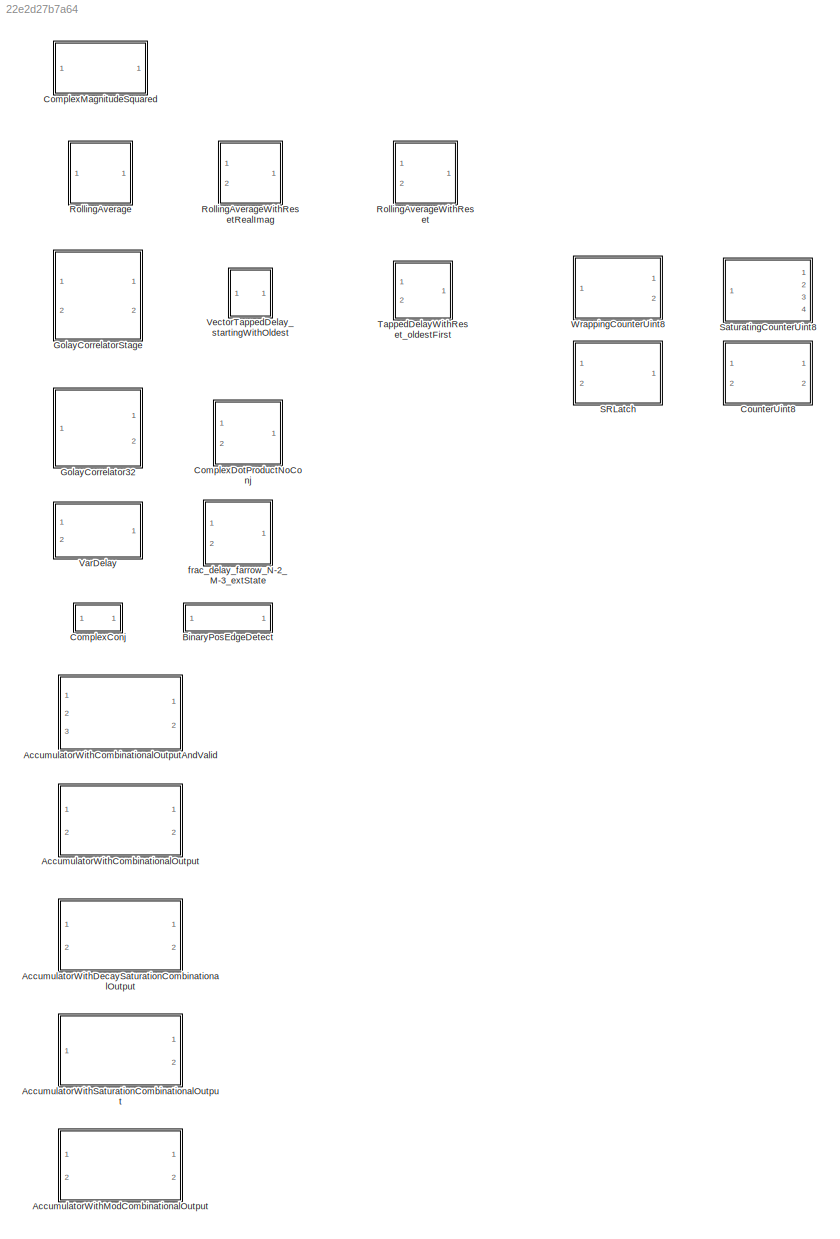
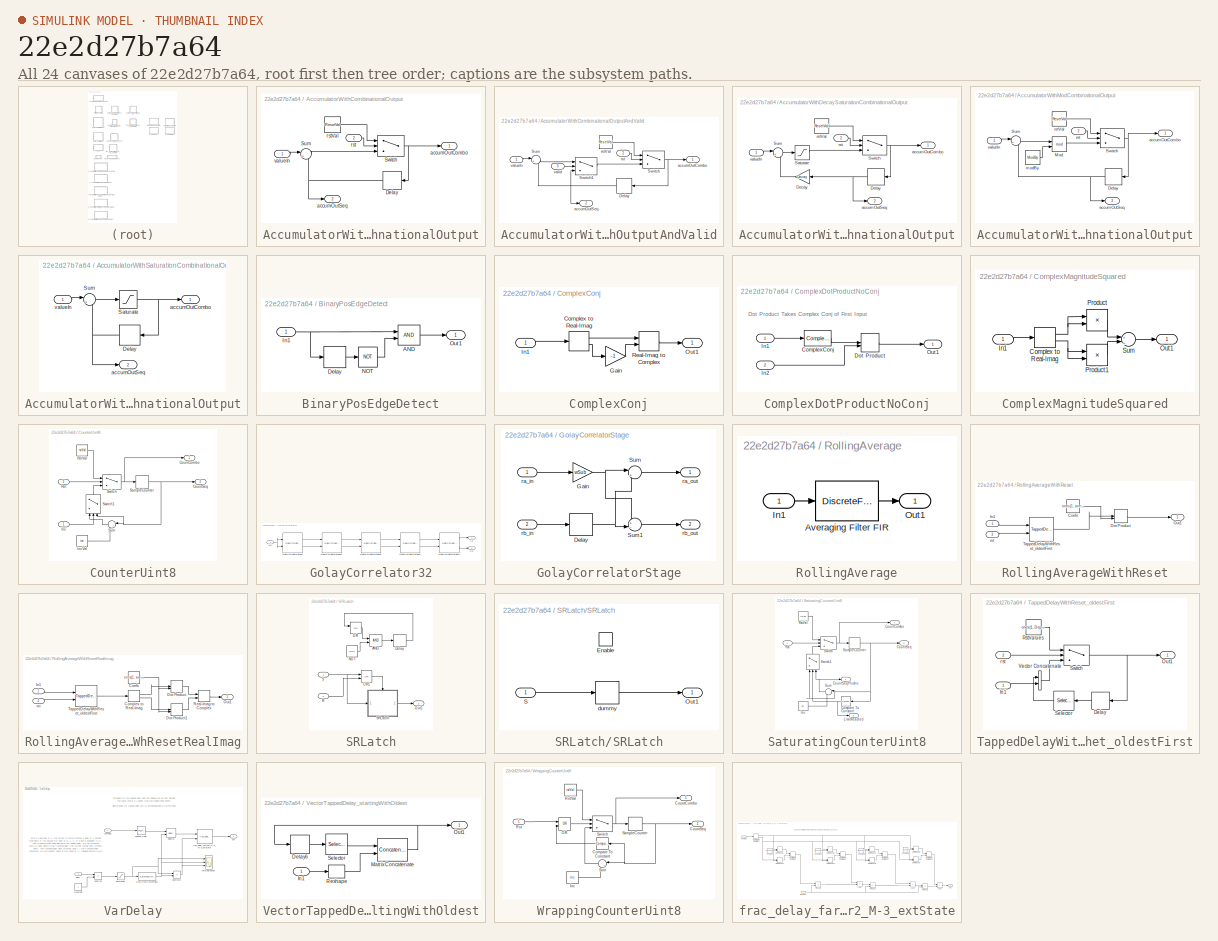
[diagram: thumbnail index - all 24 canvases of the model, root first then tree order]
MODEL slx_22e2d27b7a64
KIND library
CONFIG AbsTol = auto
CONFIG EnableMultiTasking = off
CONFIG FixedStep = auto
CONFIG MaxStep = auto
CONFIG MinStep = auto
CONFIG RelTol = 1e-3
CONFIG SampleTimeConstraint = Unconstrained
CONFIG SolverName = VariableStepAuto
CONFIG StartTime = 0.0
CONFIG StopTime = 10.0
BLOCK [SubSystem] AccumulatorWithCombinationalOutput
  Ports = [2, 2]
  RequestExecContextInheritance = off
BLOCK [Delay] AccumulatorWithCombinationalOutput/Delay
  DelayLength = 1
  InitialCondition = ResetVal
  InputPortMap = u0
  Ports = [1, 1]
BLOCK [Sum] AccumulatorWithCombinationalOutput/Sum
  Inputs = |++
  OutDataTypeStr = Inherit: Same as first input
  Ports = [2, 1]
BLOCK [Switch] AccumulatorWithCombinationalOutput/Switch
  Criteria = u2 ~= 0
  InputSameDT = off
  SaturateOnIntegerOverflow = off
BLOCK [Outport] AccumulatorWithCombinationalOutput/accumOutCombo
BLOCK [Outport] AccumulatorWithCombinationalOutput/accumOutSeq
  Port = 2
BLOCK [Inport] AccumulatorWithCombinationalOutput/rst
  Port = 2
BLOCK [Constant] AccumulatorWithCombinationalOutput/rstVal
  OutDataTypeStr = Inherit: Inherit via back propagation
  Value = ResetVal
BLOCK [Inport] AccumulatorWithCombinationalOutput/valueIn
BLOCK [SubSystem] AccumulatorWithCombinationalOutputAndValid
  Ports = [3, 2]
  RequestExecContextInheritance = off
BLOCK [Delay] AccumulatorWithCombinationalOutputAndValid/Delay
  DelayLength = 1
  InitialCondition = ResetVal
  InputPortMap = u0
  Ports = [1, 1]
BLOCK [Sum] AccumulatorWithCombinationalOutputAndValid/Sum
  Inputs = |++
  OutDataTypeStr = Inherit: Same as first input
  Ports = [2, 1]
BLOCK [Switch] AccumulatorWithCombinationalOutputAndValid/Switch
  Criteria = u2 ~= 0
  InputSameDT = off
  SaturateOnIntegerOverflow = off
BLOCK [Switch] AccumulatorWithCombinationalOutputAndValid/Switch1
  Criteria = u2 ~= 0
  InputSameDT = off
  SaturateOnIntegerOverflow = off
BLOCK [Outport] AccumulatorWithCombinationalOutputAndValid/accumOutCombo
BLOCK [Outport] AccumulatorWithCombinationalOutputAndValid/accumOutSeq
  Port = 2
BLOCK [Inport] AccumulatorWithCombinationalOutputAndValid/rst
  Port = 2
BLOCK [Constant] AccumulatorWithCombinationalOutputAndValid/rstVal
  OutDataTypeStr = Inherit: Inherit via back propagation
  Value = ResetVal
BLOCK [Inport] AccumulatorWithCombinationalOutputAndValid/valid
  OutDataTypeStr = boolean
  Port = 3
BLOCK [Inport] AccumulatorWithCombinationalOutputAndValid/valueIn
BLOCK [SubSystem] AccumulatorWithDecaySaturationCombinationalOutput
  Ports = [2, 2]
  RequestExecContextInheritance = off
BLOCK [Gain] AccumulatorWithDecaySaturationCombinationalOutput/Decay
  Gain = Decay
BLOCK [Delay] AccumulatorWithDecaySaturationCombinationalOutput/Delay
  DelayLength = 1
  InitialCondition = ResetVal
  InputPortMap = u0
  Ports = [1, 1]
BLOCK [Saturate] AccumulatorWithDecaySaturationCombinationalOutput/Saturate
  LowerLimit = SatDown
  UpperLimit = SatUp
BLOCK [Sum] AccumulatorWithDecaySaturationCombinationalOutput/Sum
  Inputs = |++
  OutDataTypeStr = Inherit: Same as first input
  Ports = [2, 1]
BLOCK [Switch] AccumulatorWithDecaySaturationCombinationalOutput/Switch
  Criteria = u2 ~= 0
  InputSameDT = off
  SaturateOnIntegerOverflow = off
BLOCK [Outport] AccumulatorWithDecaySaturationCombinationalOutput/accumOutCombo
BLOCK [Outport] AccumulatorWithDecaySaturationCombinationalOutput/accumOutSeq
  Port = 2
BLOCK [Inport] AccumulatorWithDecaySaturationCombinationalOutput/rst
  Port = 2
BLOCK [Constant] AccumulatorWithDecaySaturationCombinationalOutput/rstVal
  OutDataTypeStr = Inherit: Inherit via back propagation
  Value = ResetVal
BLOCK [Inport] AccumulatorWithDecaySaturationCombinationalOutput/valueIn
BLOCK [SubSystem] AccumulatorWithModCombinationalOutput
  Ports = [2, 2]
  RequestExecContextInheritance = off
BLOCK [Delay] AccumulatorWithModCombinationalOutput/Delay
  DelayLength = 1
  InitialCondition = ResetVal
  InputPortMap = u0
  Ports = [1, 1]
BLOCK [Math] AccumulatorWithModCombinationalOutput/Mod
  Operator = mod
  Ports = [2, 1]
BLOCK [Sum] AccumulatorWithModCombinationalOutput/Sum
  Inputs = |++
  OutDataTypeStr = Inherit: Same as first input
  Ports = [2, 1]
BLOCK [Switch] AccumulatorWithModCombinationalOutput/Switch
  Criteria = u2 ~= 0
  InputSameDT = off
  SaturateOnIntegerOverflow = off
BLOCK [Outport] AccumulatorWithModCombinationalOutput/accumOutCombo
BLOCK [Outport] AccumulatorWithModCombinationalOutput/accumOutSeq
  Port = 2
BLOCK [Constant] AccumulatorWithModCombinationalOutput/modBy
  OutDataTypeStr = Inherit: Inherit via back propagation
  Value = ModBy
BLOCK [Inport] AccumulatorWithModCombinationalOutput/rst
  Port = 2
BLOCK [Constant] AccumulatorWithModCombinationalOutput/rstVal
  OutDataTypeStr = Inherit: Inherit via back propagation
  Value = ResetVal
BLOCK [Inport] AccumulatorWithModCombinationalOutput/valueIn
BLOCK [SubSystem] AccumulatorWithSaturationCombinationalOutput
  Ports = [1, 2]
  RequestExecContextInheritance = off
BLOCK [Delay] AccumulatorWithSaturationCombinationalOutput/Delay
  DelayLength = 1
  InputPortMap = u0
  Ports = [1, 1]
BLOCK [Saturate] AccumulatorWithSaturationCombinationalOutput/Saturate
  LowerLimit = SatDown
  UpperLimit = SatUp
BLOCK [Sum] AccumulatorWithSaturationCombinationalOutput/Sum
  Inputs = |++
  OutDataTypeStr = Inherit: Same as first input
  Ports = [2, 1]
BLOCK [Outport] AccumulatorWithSaturationCombinationalOutput/accumOutCombo
BLOCK [Outport] AccumulatorWithSaturationCombinationalOutput/accumOutSeq
  Port = 2
BLOCK [Inport] AccumulatorWithSaturationCombinationalOutput/valueIn
BLOCK [SubSystem] BinaryPosEdgeDetect
  Ports = [1, 1]
  RequestExecContextInheritance = off
BLOCK [Logic] BinaryPosEdgeDetect/AND
  AllPortsSameDT = off
  IconShape = distinctive
  OutDataTypeStr = boolean
  Ports = [2, 1]
BLOCK [Delay] BinaryPosEdgeDetect/Delay
  DelayLength = 1
  InputPortMap = u0
  Ports = [1, 1]
BLOCK [Inport] BinaryPosEdgeDetect/In1
BLOCK [Logic] BinaryPosEdgeDetect/NOT
  AllPortsSameDT = off
  IconShape = distinctive
  Operator = NOT
  OutDataTypeStr = boolean
  Ports = [1, 1]
BLOCK [Outport] BinaryPosEdgeDetect/Out1
BLOCK [SubSystem] ComplexConj
  Ports = [1, 1]
  RequestExecContextInheritance = off
BLOCK [ComplexToRealImag] ComplexConj/Complex to Real-Imag
  Ports = [1, 2]
BLOCK [Gain] ComplexConj/Gain
  Gain = -1
BLOCK [Inport] ComplexConj/In1
BLOCK [Outport] ComplexConj/Out1
BLOCK [RealImagToComplex] ComplexConj/Real-Imag to Complex
  Ports = [2, 1]
BLOCK [SubSystem] ComplexDotProductNoConj
  Ports = [2, 1]
  RequestExecContextInheritance = off
BLOCK [Reference] ComplexDotProductNoConj/ComplexConj  REF=$bdroot/ComplexConj
  Ports = [1, 1]
  SourceBlock = $bdroot/ComplexConj
  SourceType = SubSystem
BLOCK [DotProduct] ComplexDotProductNoConj/Dot Product
  OutDataTypeStr = Inherit: Inherit via internal rule
BLOCK [Inport] ComplexDotProductNoConj/In1
BLOCK [Inport] ComplexDotProductNoConj/In2
  Port = 2
BLOCK [Outport] ComplexDotProductNoConj/Out1
BLOCK [SubSystem] ComplexMagnitudeSquared
  Ports = [1, 1]
  RequestExecContextInheritance = off
BLOCK [ComplexToRealImag] ComplexMagnitudeSquared/Complex to Real-Imag
  Ports = [1, 2]
BLOCK [Inport] ComplexMagnitudeSquared/In1
BLOCK [Outport] ComplexMagnitudeSquared/Out1
BLOCK [Product] ComplexMagnitudeSquared/Product
  OutDataTypeStr = Inherit: Same as first input
  Ports = [2, 1]
BLOCK [Product] ComplexMagnitudeSquared/Product1
  OutDataTypeStr = Inherit: Same as first input
  Ports = [2, 1]
BLOCK [Sum] ComplexMagnitudeSquared/Sum
  Inputs = +|+
  OutDataTypeStr = Inherit: Same as first input
  Ports = [2, 1]
BLOCK [SubSystem] CounterUint8
  Ports = [2, 2]
  RequestExecContextInheritance = off
BLOCK [Outport] CounterUint8/CountCombo
BLOCK [Outport] CounterUint8/CountSeq
  Port = 2
BLOCK [Inport] CounterUint8/Inc
  OutDataTypeStr = boolean
BLOCK [Constant] CounterUint8/IncVal
  OutDataTypeStr = uint8
  Value = inc
BLOCK [Inport] CounterUint8/Rst
  OutDataTypeStr = boolean
  Port = 2
BLOCK [Constant] CounterUint8/RstVal
  OutDataTypeStr = uint8
  Value = rstVal
BLOCK [Delay] CounterUint8/SampleCounter
  DelayLength = 1
  InputPortMap = u0
  Ports = [1, 1]
BLOCK [Sum] CounterUint8/Sum
  Inputs = |++
  Ports = [2, 1]
BLOCK [Switch] CounterUint8/Switch
  Criteria = u2 ~= 0
  InputSameDT = off
  SaturateOnIntegerOverflow = off
BLOCK [Switch] CounterUint8/Switch1
  Criteria = u2 ~= 0
  InputSameDT = off
  NameLocation = right
  SaturateOnIntegerOverflow = off
BLOCK [SubSystem] GolayCorrelator32
  Ports = [1, 2]
  RequestExecContextInheritance = off
BLOCK [Outport] GolayCorrelator32/Ca
BLOCK [Outport] GolayCorrelator32/Cb
  Port = 2
BLOCK [Reference] GolayCorrelator32/GolayCorrelatorStage  REF=$bdroot/GolayCorrelatorStage
  Ports = [2, 2]
  SourceBlock = $bdroot/GolayCorrelatorStage
BLOCK [Reference] GolayCorrelator32/GolayCorrelatorStage1  REF=$bdroot/GolayCorrelatorStage
  Ports = [2, 2]
  SourceBlock = $bdroot/GolayCorrelatorStage
BLOCK [Reference] GolayCorrelator32/GolayCorrelatorStage2  REF=$bdroot/GolayCorrelatorStage
  Ports = [2, 2]
  SourceBlock = $bdroot/GolayCorrelatorStage
BLOCK [Reference] GolayCorrelator32/GolayCorrelatorStage3  REF=$bdroot/GolayCorrelatorStage
  Ports = [2, 2]
  SourceBlock = $bdroot/GolayCorrelatorStage
BLOCK [Reference] GolayCorrelator32/GolayCorrelatorStage4  REF=$bdroot/GolayCorrelatorStage
  Ports = [2, 2]
  SourceBlock = $bdroot/GolayCorrelatorStage
BLOCK [Inport] GolayCorrelator32/In1
BLOCK [SubSystem] GolayCorrelatorStage
  Ports = [2, 2]
  RequestExecContextInheritance = off
BLOCK [Delay] GolayCorrelatorStage/Delay
  DelayLength = dSub
  InputPortMap = u0
  Ports = [1, 1]
BLOCK [Gain] GolayCorrelatorStage/Gain
  Gain = wSub
  OutDataTypeStr = Inherit: Same as input
BLOCK [Sum] GolayCorrelatorStage/Sum
  Inputs = |++
  NameLocation = top
  OutDataTypeStr = Inherit: Same as first input
  Ports = [2, 1]
BLOCK [Sum] GolayCorrelatorStage/Sum1
  Inputs = +-|
  OutDataTypeStr = Inherit: Same as first input
  Ports = [2, 1]
BLOCK [Inport] GolayCorrelatorStage/ra_in
BLOCK [Outport] GolayCorrelatorStage/ra_out
BLOCK [Inport] GolayCorrelatorStage/rb_in
  Port = 2
BLOCK [Outport] GolayCorrelatorStage/rb_out
  Port = 2
BLOCK [SubSystem] RollingAverage
  Ports = [1, 1]
  RequestExecContextInheritance = off
BLOCK [DiscreteFir] RollingAverage/Averaging Filter FIR
  Coefficients = ones(1, averagingSamples)./averagingSamples
  InputPortMap = u0
  OutputPortMap = o0
  Ports = [1, 1]
BLOCK [Inport] RollingAverage/In1
BLOCK [Outport] RollingAverage/Out1
BLOCK [SubSystem] RollingAverageWithReset
  Ports = [2, 1]
  RequestExecContextInheritance = off
BLOCK [Constant] RollingAverageWithReset/Coefs
  OutDataTypeStr = Inherit: Inherit via back propagation
  Value = ones(1, averagingSamples)./averagingSamples
BLOCK [DotProduct] RollingAverageWithReset/Dot Product
  OutDataTypeStr = Inherit: Inherit via internal rule
BLOCK [Inport] RollingAverageWithReset/In1
BLOCK [Outport] RollingAverageWithReset/Out1
BLOCK [Reference] RollingAverageWithReset/TappedDelayWithReset_oldestFirst  REF=$bdroot/TappedDelayWithReset_oldestFirst
  Ports = [2, 1]
  SourceBlock = $bdroot/TappedDelayWithReset_oldestFirst
BLOCK [Inport] RollingAverageWithReset/rst
  Port = 2
BLOCK [SubSystem] RollingAverageWithResetRealImag
  Ports = [2, 1]
  RequestExecContextInheritance = off
BLOCK [Constant] RollingAverageWithResetRealImag/Coefs
  OutDataTypeStr = Inherit: Inherit via back propagation
  Value = ones(1, averagingSamples)./averagingSamples
BLOCK [ComplexToRealImag] RollingAverageWithResetRealImag/Complex to Real-Imag
  Ports = [1, 2]
BLOCK [DotProduct] RollingAverageWithResetRealImag/Dot Product
  OutDataTypeStr = Inherit: Inherit via internal rule
BLOCK [DotProduct] RollingAverageWithResetRealImag/Dot Product1
  OutDataTypeStr = Inherit: Inherit via internal rule
BLOCK [Inport] RollingAverageWithResetRealImag/In1
BLOCK [Outport] RollingAverageWithResetRealImag/Out1
BLOCK [RealImagToComplex] RollingAverageWithResetRealImag/Real-Imag to Complex
  Ports = [2, 1]
BLOCK [Reference] RollingAverageWithResetRealImag/TappedDelayWithReset_oldestFirst  REF=$bdroot/TappedDelayWithReset_oldestFirst
  Ports = [2, 1]
  SourceBlock = $bdroot/TappedDelayWithReset_oldestFirst
BLOCK [Inport] RollingAverageWithResetRealImag/rst
  Port = 2
BLOCK [SubSystem] SRLatch
  Ports = [2, 1]
  RequestExecContextInheritance = off
BLOCK [Logic] SRLatch/AND
  AllPortsSameDT = off
  Commented = on
  IconShape = distinctive
  OutDataTypeStr = boolean
  Ports = [2, 1]
BLOCK [Delay] SRLatch/Delay
  Commented = on
  DelayLength = 1
  InitialCondition = init
  InputPortMap = u0
  Ports = [1, 1]
BLOCK [Logic] SRLatch/NOT
  AllPortsSameDT = off
  Commented = on
  IconShape = distinctive
  Operator = NOT
  OutDataTypeStr = boolean
  Ports = [1, 1]
BLOCK [Logic] SRLatch/OR
  AllPortsSameDT = off
  Commented = on
  IconShape = distinctive
  Operator = OR
  OutDataTypeStr = boolean
  Ports = [2, 1]
BLOCK [Logic] SRLatch/OR1
  AllPortsSameDT = off
  IconShape = distinctive
  Operator = OR
  OutDataTypeStr = boolean
  Ports = [2, 1]
BLOCK [Outport] SRLatch/Out1
BLOCK [Inport] SRLatch/R
  OutDataTypeStr = boolean
  Port = 2
BLOCK [Inport] SRLatch/S
  OutDataTypeStr = boolean
BLOCK [SubSystem] SRLatch/SRLatch
  Ports = [1, 1, 1]
  RequestExecContextInheritance = off
  TreatAsAtomicUnit = on
BLOCK [EnablePort] SRLatch/SRLatch/Enable
  Ports = []
BLOCK [Outport] SRLatch/SRLatch/Out1
  InitialOutput = init
  OutDataTypeStr = boolean
BLOCK [Inport] SRLatch/SRLatch/S
BLOCK [Delay] SRLatch/SRLatch/dummy
  DelayLength = 0
  InputPortMap = u0
  Ports = [1, 1]
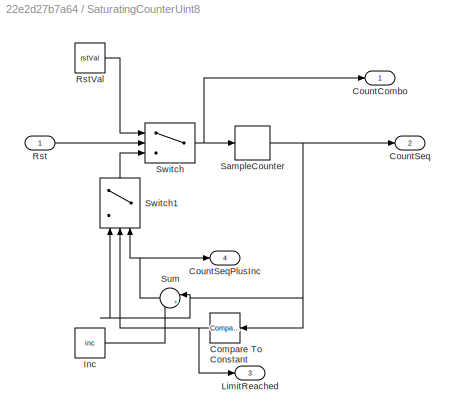
BLOCK [SubSystem] SaturatingCounterUint8
  Ports = [1, 4]
  RequestExecContextInheritance = off
BLOCK [Reference] SaturatingCounterUint8/Compare To Constant  REF=simulink/Logic and Bit
Operations/Compare
To Constant
  Ports = [1, 1]
  SourceBlock = simulink/Logic and Bit\nOperations/Compare\nTo Constant
  SourceProductBaseCode = SL
  SourceType = Compare To Constant
BLOCK [Outport] SaturatingCounterUint8/CountCombo
BLOCK [Outport] SaturatingCounterUint8/CountSeq
  Port = 2
BLOCK [Outport] SaturatingCounterUint8/CountSeqPlusInc
  Port = 4
BLOCK [Constant] SaturatingCounterUint8/Inc
  OutDataTypeStr = uint8
  Value = inc
BLOCK [Outport] SaturatingCounterUint8/LimitReached
  Port = 3
BLOCK [Inport] SaturatingCounterUint8/Rst
  OutDataTypeStr = boolean
BLOCK [Constant] SaturatingCounterUint8/RstVal
  OutDataTypeStr = uint8
  Value = rstVal
BLOCK [Delay] SaturatingCounterUint8/SampleCounter
  DelayLength = 1
  InputPortMap = u0
  Ports = [1, 1]
BLOCK [Sum] SaturatingCounterUint8/Sum
  Inputs = |++
  Ports = [2, 1]
BLOCK [Switch] SaturatingCounterUint8/Switch
  Criteria = u2 ~= 0
  InputSameDT = off
  SaturateOnIntegerOverflow = off
BLOCK [Switch] SaturatingCounterUint8/Switch1
  Criteria = u2 > Threshold
  InputSameDT = off
  NameLocation = right
  SaturateOnIntegerOverflow = off
BLOCK [SubSystem] TappedDelayWithReset_oldestFirst
  Ports = [2, 1]
  RequestExecContextInheritance = off
BLOCK [Delay] TappedDelayWithReset_oldestFirst/Delay
  DelayLength = 1
  InputPortMap = u0
  Ports = [1, 1]
BLOCK [Inport] TappedDelayWithReset_oldestFirst/In1
  PortDimensions = 1
BLOCK [Outport] TappedDelayWithReset_oldestFirst/Out1
  PortDimensions = [Depth]
BLOCK [Constant] TappedDelayWithReset_oldestFirst/RstValues
  OutDataTypeStr = Inherit: Inherit via back propagation
  Value = ones(1, Depth).*RstVal
BLOCK [Selector] TappedDelayWithReset_oldestFirst/Selector
  IndexMode = Zero-based
  IndexOptions = Starting index (dialog)
  Indices = 1
  InputPortWidth = Depth
  OutputSizes = Depth-1
  Ports = [1, 1]
BLOCK [Switch] TappedDelayWithReset_oldestFirst/Switch
  Criteria = u2 ~= 0
  InputSameDT = off
  SaturateOnIntegerOverflow = off
BLOCK [Concatenate] TappedDelayWithReset_oldestFirst/Vector Concatenate
  Ports = [2, 1]
BLOCK [Inport] TappedDelayWithReset_oldestFirst/rst
  Port = 2
BLOCK [SubSystem] VarDelay
  Ports = [2, 1]
  RequestExecContextInheritance = off
BLOCK [Constant] VarDelay/Constant
  OutDataTypeStr = Inherit: Inherit via back propagation
BLOCK [DataTypeConversion] VarDelay/Data Type Conversion
  OutDataTypeStr = int32
  RndMeth = Floor
  SaturateOnIntegerOverflow = off
BLOCK [Saturate] VarDelay/Saturation
  LinearizeAsGain = off
  LowerLimit = 0
  UpperLimit = trTappedDelayLen+1-trFarrowTaps
BLOCK [Selector] VarDelay/Selector
  IndexMode = Zero-based
  IndexOptions = Starting index (port)
  Indices = [1 3]
  InputPortWidth = trTappedDelayLen+1
  OutputSizes = trFarrowTaps
  Ports = [2, 1]
BLOCK [Sum] VarDelay/Subtract
  IconShape = rectangular
  Inputs = +-
  OutDataTypeStr = Inherit: Same as first input
  Ports = [2, 1]
BLOCK [Sum] VarDelay/Subtract1
  IconShape = rectangular
  Inputs = +-
  OutDataTypeStr = Inherit: Same as first input
  Ports = [2, 1]
BLOCK [Reference] VarDelay/Tapped Delay  REF=simulink/Discrete/Tapped Delay
  Ports = [1, 1]
  SourceBlock = simulink/Discrete/Tapped Delay
  SourceProductBaseCode = SL
  SourceType = Tapped Delay Line
BLOCK [Scope] VarDelay/VarDelayScope
  Floating = off
  NumInputPorts = 3
  Ports = [3]
  ScopeSpecificationString = Simulink.scopes.TimeScopeBlockCfg('CurrentConfiguration', extmgr.ConfigurationSet(extmgr.Configuration('Core','General UI',true),extmgr.Configuration('Core','Source UI',true),extmgr.Configuration('Sources','WiredSimulink',true,'DataLoggingVariableName','ScopeData1'),extmgr.Configuration('Visuals','Time Domain',true,'SerializedDisplays',{struct('MinYLimReal','-2.625','MaxYLimReal','23.625','YLabelR...<+1450ch>
BLOCK [Inport] VarDelay/delay
  OutDataTypeStr = single
  Port = 2
BLOCK [Reference] VarDelay/frac_delay_farrow_N-2_M-3_extState  REF=$bdroot/frac_delay_farrow_N-2_M-3_extState
  Ports = [2, 1]
  SourceBlock = $bdroot/frac_delay_farrow_N-2_M-3_extState
  SourceType = SubSystem
BLOCK [Outport] VarDelay/out
  VectorParamsAs1DForOutWhenUnconnected = off
BLOCK [Inport] VarDelay/samples
BLOCK [SubSystem] VectorTappedDelay_startingWithOldest
  Ports = [1, 1]
  RequestExecContextInheritance = off
BLOCK [Delay] VectorTappedDelay_startingWithOldest/Delay6
  DelayLength = 1
  InitialCondition = InitCond
  InputPortMap = u0
  Ports = [1, 1]
BLOCK [Inport] VectorTappedDelay_startingWithOldest/In1
  PortDimensions = [VecLen]
BLOCK [Concatenate] VectorTappedDelay_startingWithOldest/Matrix Concatenate
  Mode = Multidimensional array
  Ports = [2, 1]
BLOCK [Outport] VectorTappedDelay_startingWithOldest/Out1
  PortDimensions = [Depth, VecLen]
BLOCK [Reshape] VectorTappedDelay_startingWithOldest/Reshape
  OutputDimensionality = Row vector (2-D)
  Ports = [1, 1]
BLOCK [Selector] VectorTappedDelay_startingWithOldest/Selector
  IndexOptions = Starting index (dialog),Starting index (dialog)
  Indices = 2,1
  InputPortWidth = 3
  NumberOfDimensions = 2
  OutputSizes = Depth-1,VecLen
  Ports = [1, 1]
BLOCK [SubSystem] WrappingCounterUint8
  Ports = [1, 2]
  RequestExecContextInheritance = off
BLOCK [Reference] WrappingCounterUint8/Compare To Constant  REF=simulink/Logic and Bit
Operations/Compare
To Constant
  Ports = [1, 1]
  SourceBlock = simulink/Logic and Bit\nOperations/Compare\nTo Constant
  SourceProductBaseCode = SL
  SourceType = Compare To Constant
BLOCK [Outport] WrappingCounterUint8/CountCombo
BLOCK [Outport] WrappingCounterUint8/CountSeq
  Port = 2
BLOCK [Constant] WrappingCounterUint8/Inc
  OutDataTypeStr = uint8
  Value = inc
BLOCK [Logic] WrappingCounterUint8/OR
  AllPortsSameDT = off
  IconShape = distinctive
  Operator = OR
  OutDataTypeStr = boolean
  Ports = [2, 1]
BLOCK [Inport] WrappingCounterUint8/Rst
  OutDataTypeStr = boolean
BLOCK [Constant] WrappingCounterUint8/RstVal
  OutDataTypeStr = uint8
  Value = rstVal
BLOCK [Delay] WrappingCounterUint8/SampleCounter
  DelayLength = 1
  InputPortMap = u0
  Ports = [1, 1]
BLOCK [Sum] WrappingCounterUint8/Sum
  Inputs = |++
  Ports = [2, 1]
BLOCK [Switch] WrappingCounterUint8/Switch
  Criteria = u2 ~= 0
  InputSameDT = off
  SaturateOnIntegerOverflow = off
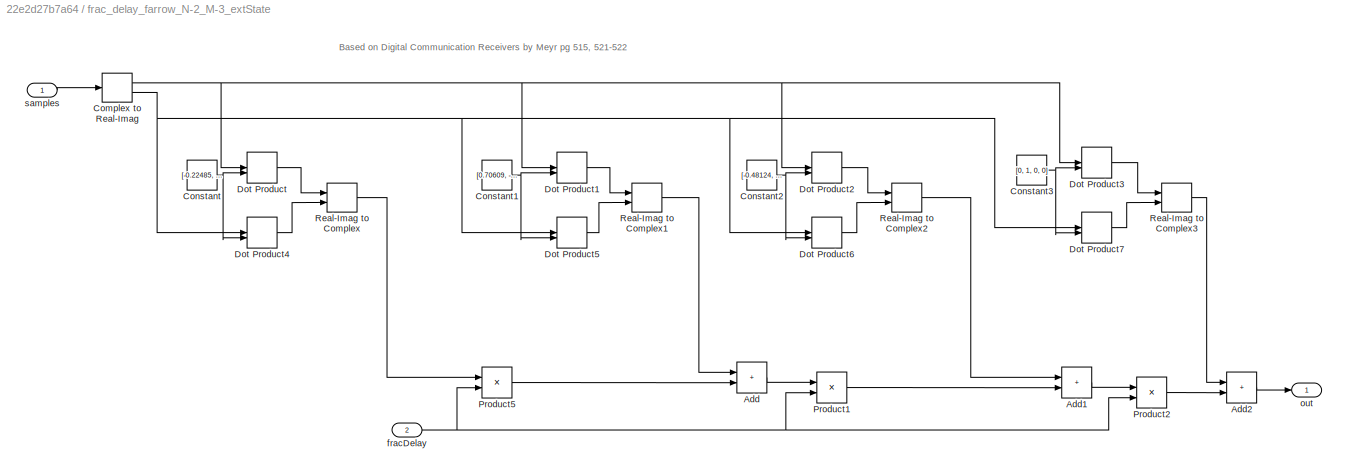
BLOCK [SubSystem] frac_delay_farrow_N-2_M-3_extState
  Ports = [2, 1]
  RequestExecContextInheritance = off
BLOCK [Sum] frac_delay_farrow_N-2_M-3_extState/Add
  AccumDataTypeStr = Inherit: Same as first input
  IconShape = rectangular
  Ports = [2, 1]
BLOCK [Sum] frac_delay_farrow_N-2_M-3_extState/Add1
  AccumDataTypeStr = Inherit: Same as first input
  IconShape = rectangular
  Ports = [2, 1]
BLOCK [Sum] frac_delay_farrow_N-2_M-3_extState/Add2
  AccumDataTypeStr = Inherit: Same as first input
  IconShape = rectangular
  Ports = [2, 1]
BLOCK [ComplexToRealImag] frac_delay_farrow_N-2_M-3_extState/Complex to Real-Imag
  Ports = [1, 2]
BLOCK [Constant] frac_delay_farrow_N-2_M-3_extState/Constant
  OutDataTypeStr = Inherit: Inherit via back propagation
  Value = [-0.22485, 0.64567, -0.64567, 0.22485]
BLOCK [Constant] frac_delay_farrow_N-2_M-3_extState/Constant1
  OutDataTypeStr = Inherit: Inherit via back propagation
  Value = [0.70609, -1.31155, 0.62547, 0.03154]
BLOCK [Constant] frac_delay_farrow_N-2_M-3_extState/Constant2
  OutDataTypeStr = Inherit: Inherit via back propagation
  Value = [-0.48124, -0.33413, 1.02020, -0.25639]
BLOCK [Constant] frac_delay_farrow_N-2_M-3_extState/Constant3
  OutDataTypeStr = Inherit: Inherit via back propagation
  Value = [0, 1, 0, 0]
BLOCK [DotProduct] frac_delay_farrow_N-2_M-3_extState/Dot Product
  OutDataTypeStr = Inherit: Inherit via internal rule
BLOCK [DotProduct] frac_delay_farrow_N-2_M-3_extState/Dot Product1
  OutDataTypeStr = Inherit: Inherit via internal rule
BLOCK [DotProduct] frac_delay_farrow_N-2_M-3_extState/Dot Product2
  OutDataTypeStr = Inherit: Inherit via internal rule
BLOCK [DotProduct] frac_delay_farrow_N-2_M-3_extState/Dot Product3
  OutDataTypeStr = Inherit: Inherit via internal rule
BLOCK [DotProduct] frac_delay_farrow_N-2_M-3_extState/Dot Product4
  OutDataTypeStr = Inherit: Inherit via internal rule
BLOCK [DotProduct] frac_delay_farrow_N-2_M-3_extState/Dot Product5
  OutDataTypeStr = Inherit: Inherit via internal rule
BLOCK [DotProduct] frac_delay_farrow_N-2_M-3_extState/Dot Product6
  OutDataTypeStr = Inherit: Inherit via internal rule
BLOCK [DotProduct] frac_delay_farrow_N-2_M-3_extState/Dot Product7
  OutDataTypeStr = Inherit: Inherit via internal rule
BLOCK [Product] frac_delay_farrow_N-2_M-3_extState/Product1
  OutDataTypeStr = Inherit: Same as first input
  Ports = [2, 1]
BLOCK [Product] frac_delay_farrow_N-2_M-3_extState/Product2
  OutDataTypeStr = Inherit: Same as first input
  Ports = [2, 1]
BLOCK [Product] frac_delay_farrow_N-2_M-3_extState/Product5
  OutDataTypeStr = Inherit: Same as first input
  Ports = [2, 1]
BLOCK [RealImagToComplex] frac_delay_farrow_N-2_M-3_extState/Real-Imag to Complex
  Ports = [2, 1]
BLOCK [RealImagToComplex] frac_delay_farrow_N-2_M-3_extState/Real-Imag to Complex1
  Ports = [2, 1]
BLOCK [RealImagToComplex] frac_delay_farrow_N-2_M-3_extState/Real-Imag to Complex2
  Ports = [2, 1]
BLOCK [RealImagToComplex] frac_delay_farrow_N-2_M-3_extState/Real-Imag to Complex3
  Ports = [2, 1]
BLOCK [Inport] frac_delay_farrow_N-2_M-3_extState/fracDelay
  Port = 2
BLOCK [Outport] frac_delay_farrow_N-2_M-3_extState/out
  VectorParamsAs1DForOutWhenUnconnected = off
BLOCK [Inport] frac_delay_farrow_N-2_M-3_extState/samples
  PortDimensions = 4
ANNOTATION ComplexDotProductNoConj: Dot Product Takes Complex Conj of First Input
ANNOTATION VarDelay: The length of the tapped delay does not include the current sample, the ouput vector is 1 longer than the tapped delay length. Allowed index for tapped delay are (0, lenTappedDelay+1-farrowTaps)
ANNOTATION VarDelay: with a fracDelay of 0, the farrow structure still has a delay of 1 sample (coeffients of the passed FIR filter is [0, 1, 0, 0] which is equivalent to z^-1) With a passthrough value allowed in the tapped delay, we can effectivly pass a 0 delay signal to the fractional delay (the current sample and 4 previous ones). The fractional delay filter effectivly adds 1 + the fractional delay. Therefore, we ...<+111ch>
ANNOTATION frac_delay_farrow_N-2_M-3_extState: Based on Digital Communication Receivers by Meyr pg 515, 521-522
NET AccumulatorWithCombinationalOutput/Delay:1 -> AccumulatorWithCombinationalOutput/Sum:2, AccumulatorWithCombinationalOutput/accumOutSeq:1
LINE AccumulatorWithCombinationalOutput/Sum:1 -> AccumulatorWithCombinationalOutput/Switch:3
NET AccumulatorWithCombinationalOutput/Switch:1 -> AccumulatorWithCombinationalOutput/Delay:1, AccumulatorWithCombinationalOutput/accumOutCombo:1
LINE AccumulatorWithCombinationalOutput/rst:1 -> AccumulatorWithCombinationalOutput/Switch:2
LINE AccumulatorWithCombinationalOutput/rstVal:1 -> AccumulatorWithCombinationalOutput/Switch:1
LINE AccumulatorWithCombinationalOutput/valueIn:1 -> AccumulatorWithCombinationalOutput/Sum:1
NET AccumulatorWithCombinationalOutputAndValid/Delay:1 -> AccumulatorWithCombinationalOutputAndValid/Sum:2, AccumulatorWithCombinationalOutputAndValid/Switch1:3, AccumulatorWithCombinationalOutputAndValid/accumOutSeq:1
LINE AccumulatorWithCombinationalOutputAndValid/Sum:1 -> AccumulatorWithCombinationalOutputAndValid/Switch1:1
LINE AccumulatorWithCombinationalOutputAndValid/Switch1:1 -> AccumulatorWithCombinationalOutputAndValid/Switch:3
NET AccumulatorWithCombinationalOutputAndValid/Switch:1 -> AccumulatorWithCombinationalOutputAndValid/Delay:1, AccumulatorWithCombinationalOutputAndValid/accumOutCombo:1
LINE AccumulatorWithCombinationalOutputAndValid/rst:1 -> AccumulatorWithCombinationalOutputAndValid/Switch:2
LINE AccumulatorWithCombinationalOutputAndValid/rstVal:1 -> AccumulatorWithCombinationalOutputAndValid/Switch:1
LINE AccumulatorWithCombinationalOutputAndValid/valid:1 -> AccumulatorWithCombinationalOutputAndValid/Switch1:2
LINE AccumulatorWithCombinationalOutputAndValid/valueIn:1 -> AccumulatorWithCombinationalOutputAndValid/Sum:1
LINE AccumulatorWithDecaySaturationCombinationalOutput/Decay:1 -> AccumulatorWithDecaySaturationCombinationalOutput/Sum:2
NET AccumulatorWithDecaySaturationCombinationalOutput/Delay:1 -> AccumulatorWithDecaySaturationCombinationalOutput/Decay:1, AccumulatorWithDecaySaturationCombinationalOutput/accumOutSeq:1
LINE AccumulatorWithDecaySaturationCombinationalOutput/Saturate:1 -> AccumulatorWithDecaySaturationCombinationalOutput/Switch:3
LINE AccumulatorWithDecaySaturationCombinationalOutput/Sum:1 -> AccumulatorWithDecaySaturationCombinationalOutput/Saturate:1
NET AccumulatorWithDecaySaturationCombinationalOutput/Switch:1 -> AccumulatorWithDecaySaturationCombinationalOutput/Delay:1, AccumulatorWithDecaySaturationCombinationalOutput/accumOutCombo:1
LINE AccumulatorWithDecaySaturationCombinationalOutput/rst:1 -> AccumulatorWithDecaySaturationCombinationalOutput/Switch:2
LINE AccumulatorWithDecaySaturationCombinationalOutput/rstVal:1 -> AccumulatorWithDecaySaturationCombinationalOutput/Switch:1
LINE AccumulatorWithDecaySaturationCombinationalOutput/valueIn:1 -> AccumulatorWithDecaySaturationCombinationalOutput/Sum:1
NET AccumulatorWithModCombinationalOutput/Delay:1 -> AccumulatorWithModCombinationalOutput/Sum:2, AccumulatorWithModCombinationalOutput/accumOutSeq:1
LINE AccumulatorWithModCombinationalOutput/Mod:1 -> AccumulatorWithModCombinationalOutput/Switch:3
LINE AccumulatorWithModCombinationalOutput/Sum:1 -> AccumulatorWithModCombinationalOutput/Mod:1
NET AccumulatorWithModCombinationalOutput/Switch:1 -> AccumulatorWithModCombinationalOutput/Delay:1, AccumulatorWithModCombinationalOutput/accumOutCombo:1
LINE AccumulatorWithModCombinationalOutput/modBy:1 -> AccumulatorWithModCombinationalOutput/Mod:2
LINE AccumulatorWithModCombinationalOutput/rst:1 -> AccumulatorWithModCombinationalOutput/Switch:2
LINE AccumulatorWithModCombinationalOutput/rstVal:1 -> AccumulatorWithModCombinationalOutput/Switch:1
LINE AccumulatorWithModCombinationalOutput/valueIn:1 -> AccumulatorWithModCombinationalOutput/Sum:1
NET AccumulatorWithSaturationCombinationalOutput/Delay:1 -> AccumulatorWithSaturationCombinationalOutput/Sum:2, AccumulatorWithSaturationCombinationalOutput/accumOutSeq:1
NET AccumulatorWithSaturationCombinationalOutput/Saturate:1 -> AccumulatorWithSaturationCombinationalOutput/Delay:1, AccumulatorWithSaturationCombinationalOutput/accumOutCombo:1
LINE AccumulatorWithSaturationCombinationalOutput/Sum:1 -> AccumulatorWithSaturationCombinationalOutput/Saturate:1
LINE AccumulatorWithSaturationCombinationalOutput/valueIn:1 -> AccumulatorWithSaturationCombinationalOutput/Sum:1
LINE BinaryPosEdgeDetect/AND:1 -> BinaryPosEdgeDetect/Out1:1
LINE BinaryPosEdgeDetect/Delay:1 -> BinaryPosEdgeDetect/NOT:1
NET BinaryPosEdgeDetect/In1:1 -> BinaryPosEdgeDetect/AND:1, BinaryPosEdgeDetect/Delay:1
LINE BinaryPosEdgeDetect/NOT:1 -> BinaryPosEdgeDetect/AND:2
LINE ComplexConj/Complex to Real-Imag:1 -> ComplexConj/Real-Imag to Complex:1
LINE ComplexConj/Complex to Real-Imag:2 -> ComplexConj/Gain:1
LINE ComplexConj/Gain:1 -> ComplexConj/Real-Imag to Complex:2
LINE ComplexConj/In1:1 -> ComplexConj/Complex to Real-Imag:1
LINE ComplexConj/Real-Imag to Complex:1 -> ComplexConj/Out1:1
LINE ComplexDotProductNoConj/ComplexConj:1 -> ComplexDotProductNoConj/Dot Product:1
LINE ComplexDotProductNoConj/Dot Product:1 -> ComplexDotProductNoConj/Out1:1
LINE ComplexDotProductNoConj/In1:1 -> ComplexDotProductNoConj/ComplexConj:1
LINE ComplexDotProductNoConj/In2:1 -> ComplexDotProductNoConj/Dot Product:2
NET ComplexMagnitudeSquared/Complex to Real-Imag:1 -> ComplexMagnitudeSquared/Product:1, ComplexMagnitudeSquared/Product:2
NET ComplexMagnitudeSquared/Complex to Real-Imag:2 -> ComplexMagnitudeSquared/Product1:1, ComplexMagnitudeSquared/Product1:2
LINE ComplexMagnitudeSquared/In1:1 -> ComplexMagnitudeSquared/Complex to Real-Imag:1
LINE ComplexMagnitudeSquared/Product1:1 -> ComplexMagnitudeSquared/Sum:2
LINE ComplexMagnitudeSquared/Product:1 -> ComplexMagnitudeSquared/Sum:1
LINE ComplexMagnitudeSquared/Sum:1 -> ComplexMagnitudeSquared/Out1:1
LINE CounterUint8/Inc:1 -> CounterUint8/Switch1:2
LINE CounterUint8/IncVal:1 -> CounterUint8/Sum:2
LINE CounterUint8/Rst:1 -> CounterUint8/Switch:2
LINE CounterUint8/RstVal:1 -> CounterUint8/Switch:1
NET CounterUint8/SampleCounter:1 -> CounterUint8/CountSeq:1, CounterUint8/Sum:1, CounterUint8/Switch1:3
LINE CounterUint8/Sum:1 -> CounterUint8/Switch1:1
LINE CounterUint8/Switch1:1 -> CounterUint8/Switch:3
NET CounterUint8/Switch:1 -> CounterUint8/CountCombo:1, CounterUint8/SampleCounter:1
LINE GolayCorrelator32/GolayCorrelatorStage1:1 -> GolayCorrelator32/GolayCorrelatorStage2:1
LINE GolayCorrelator32/GolayCorrelatorStage1:2 -> GolayCorrelator32/GolayCorrelatorStage2:2
LINE GolayCorrelator32/GolayCorrelatorStage2:1 -> GolayCorrelator32/GolayCorrelatorStage3:1
LINE GolayCorrelator32/GolayCorrelatorStage2:2 -> GolayCorrelator32/GolayCorrelatorStage3:2
LINE GolayCorrelator32/GolayCorrelatorStage3:1 -> GolayCorrelator32/GolayCorrelatorStage4:1
LINE GolayCorrelator32/GolayCorrelatorStage3:2 -> GolayCorrelator32/GolayCorrelatorStage4:2
LINE GolayCorrelator32/GolayCorrelatorStage4:1 -> GolayCorrelator32/Ca:1
LINE GolayCorrelator32/GolayCorrelatorStage4:2 -> GolayCorrelator32/Cb:1
LINE GolayCorrelator32/GolayCorrelatorStage:1 -> GolayCorrelator32/GolayCorrelatorStage1:1
LINE GolayCorrelator32/GolayCorrelatorStage:2 -> GolayCorrelator32/GolayCorrelatorStage1:2
NET GolayCorrelator32/In1:1 -> GolayCorrelator32/GolayCorrelatorStage:1, GolayCorrelator32/GolayCorrelatorStage:2
NET GolayCorrelatorStage/Delay:1 -> GolayCorrelatorStage/Sum1:2, GolayCorrelatorStage/Sum:2
NET GolayCorrelatorStage/Gain:1 -> GolayCorrelatorStage/Sum1:1, GolayCorrelatorStage/Sum:1
LINE GolayCorrelatorStage/Sum1:1 -> GolayCorrelatorStage/rb_out:1
LINE GolayCorrelatorStage/Sum:1 -> GolayCorrelatorStage/ra_out:1
LINE GolayCorrelatorStage/ra_in:1 -> GolayCorrelatorStage/Gain:1
LINE GolayCorrelatorStage/rb_in:1 -> GolayCorrelatorStage/Delay:1
LINE RollingAverage/Averaging Filter FIR:1 -> RollingAverage/Out1:1
LINE RollingAverage/In1:1 -> RollingAverage/Averaging Filter FIR:1
LINE RollingAverageWithReset/Coefs:1 -> RollingAverageWithReset/Dot Product:2
LINE RollingAverageWithReset/Dot Product:1 -> RollingAverageWithReset/Out1:1
LINE RollingAverageWithReset/In1:1 -> RollingAverageWithReset/TappedDelayWithReset_oldestFirst:1
LINE RollingAverageWithReset/TappedDelayWithReset_oldestFirst:1 -> RollingAverageWithReset/Dot Product:1
LINE RollingAverageWithReset/rst:1 -> RollingAverageWithReset/TappedDelayWithReset_oldestFirst:2
NET RollingAverageWithResetRealImag/Coefs:1 -> RollingAverageWithResetRealImag/Dot Product1:2, RollingAverageWithResetRealImag/Dot Product:2
LINE RollingAverageWithResetRealImag/Complex to Real-Imag:1 -> RollingAverageWithResetRealImag/Dot Product:1
LINE RollingAverageWithResetRealImag/Complex to Real-Imag:2 -> RollingAverageWithResetRealImag/Dot Product1:1
LINE RollingAverageWithResetRealImag/Dot Product1:1 -> RollingAverageWithResetRealImag/Real-Imag to Complex:2
LINE RollingAverageWithResetRealImag/Dot Product:1 -> RollingAverageWithResetRealImag/Real-Imag to Complex:1
LINE RollingAverageWithResetRealImag/In1:1 -> RollingAverageWithResetRealImag/TappedDelayWithReset_oldestFirst:1
LINE RollingAverageWithResetRealImag/Real-Imag to Complex:1 -> RollingAverageWithResetRealImag/Out1:1
LINE RollingAverageWithResetRealImag/TappedDelayWithReset_oldestFirst:1 -> RollingAverageWithResetRealImag/Complex to Real-Imag:1
LINE RollingAverageWithResetRealImag/rst:1 -> RollingAverageWithResetRealImag/TappedDelayWithReset_oldestFirst:2
LINE SRLatch/AND:1 -> SRLatch/Delay:1
LINE SRLatch/Delay:1 -> SRLatch/OR:1
LINE SRLatch/NOT:1 -> SRLatch/AND:2
LINE SRLatch/OR1:1 -> SRLatch/SRLatch:enable
LINE SRLatch/OR:1 -> SRLatch/AND:1
LINE SRLatch/R:1 -> SRLatch/OR1:2
NET SRLatch/S:1 -> SRLatch/OR1:1, SRLatch/SRLatch:1
LINE SRLatch/SRLatch/S:1 -> SRLatch/SRLatch/dummy:1
LINE SRLatch/SRLatch/dummy:1 -> SRLatch/SRLatch/Out1:1
LINE SRLatch/SRLatch:1 -> SRLatch/Out1:1
NET SaturatingCounterUint8/Compare To Constant:1 -> SaturatingCounterUint8/LimitReached:1, SaturatingCounterUint8/Switch1:2
LINE SaturatingCounterUint8/Inc:1 -> SaturatingCounterUint8/Sum:2
LINE SaturatingCounterUint8/Rst:1 -> SaturatingCounterUint8/Switch:2
LINE SaturatingCounterUint8/RstVal:1 -> SaturatingCounterUint8/Switch:1
NET SaturatingCounterUint8/SampleCounter:1 -> SaturatingCounterUint8/Compare To Constant:1, SaturatingCounterUint8/CountSeq:1, SaturatingCounterUint8/Sum:1, SaturatingCounterUint8/Switch1:1
NET SaturatingCounterUint8/Sum:1 -> SaturatingCounterUint8/CountSeqPlusInc:1, SaturatingCounterUint8/Switch1:3
LINE SaturatingCounterUint8/Switch1:1 -> SaturatingCounterUint8/Switch:3
NET SaturatingCounterUint8/Switch:1 -> SaturatingCounterUint8/CountCombo:1, SaturatingCounterUint8/SampleCounter:1
LINE TappedDelayWithReset_oldestFirst/Delay:1 -> TappedDelayWithReset_oldestFirst/Selector:1
LINE TappedDelayWithReset_oldestFirst/In1:1 -> TappedDelayWithReset_oldestFirst/Vector Concatenate:2
LINE TappedDelayWithReset_oldestFirst/RstValues:1 -> TappedDelayWithReset_oldestFirst/Switch:1
LINE TappedDelayWithReset_oldestFirst/Selector:1 -> TappedDelayWithReset_oldestFirst/Vector Concatenate:1
NET TappedDelayWithReset_oldestFirst/Switch:1 -> TappedDelayWithReset_oldestFirst/Delay:1, TappedDelayWithReset_oldestFirst/Out1:1
LINE TappedDelayWithReset_oldestFirst/Vector Concatenate:1 -> TappedDelayWithReset_oldestFirst/Switch:3
LINE TappedDelayWithReset_oldestFirst/rst:1 -> TappedDelayWithReset_oldestFirst/Switch:2
LINE VarDelay/Constant:1 -> VarDelay/Subtract:2
NET VarDelay/Data Type Conversion:1 -> VarDelay/Selector:2, VarDelay/Subtract1:2, VarDelay/VarDelayScope:2
NET VarDelay/Saturation:1 -> VarDelay/Data Type Conversion:1, VarDelay/Subtract1:1, VarDelay/VarDelayScope:1
LINE VarDelay/Selector:1 -> VarDelay/frac_delay_farrow_N-2_M-3_extState:1
NET VarDelay/Subtract1:1 -> VarDelay/VarDelayScope:3, VarDelay/frac_delay_farrow_N-2_M-3_extState:2
LINE VarDelay/Subtract:1 -> VarDelay/Saturation:1
LINE VarDelay/Tapped Delay:1 -> VarDelay/Selector:1
LINE VarDelay/delay:1 -> VarDelay/Subtract:1
LINE VarDelay/frac_delay_farrow_N-2_M-3_extState:1 -> VarDelay/out:1
LINE VarDelay/samples:1 -> VarDelay/Tapped Delay:1
LINE VectorTappedDelay_startingWithOldest/Delay6:1 -> VectorTappedDelay_startingWithOldest/Selector:1
LINE VectorTappedDelay_startingWithOldest/In1:1 -> VectorTappedDelay_startingWithOldest/Reshape:1
NET VectorTappedDelay_startingWithOldest/Matrix Concatenate:1 -> VectorTappedDelay_startingWithOldest/Delay6:1, VectorTappedDelay_startingWithOldest/Out1:1
LINE VectorTappedDelay_startingWithOldest/Reshape:1 -> VectorTappedDelay_startingWithOldest/Matrix Concatenate:2
LINE VectorTappedDelay_startingWithOldest/Selector:1 -> VectorTappedDelay_startingWithOldest/Matrix Concatenate:1
LINE WrappingCounterUint8/Compare To Constant:1 -> WrappingCounterUint8/OR:2
LINE WrappingCounterUint8/Inc:1 -> WrappingCounterUint8/Sum:2
LINE WrappingCounterUint8/OR:1 -> WrappingCounterUint8/Switch:2
LINE WrappingCounterUint8/Rst:1 -> WrappingCounterUint8/OR:1
LINE WrappingCounterUint8/RstVal:1 -> WrappingCounterUint8/Switch:1
NET WrappingCounterUint8/SampleCounter:1 -> WrappingCounterUint8/Compare To Constant:1, WrappingCounterUint8/CountSeq:1, WrappingCounterUint8/Sum:1
LINE WrappingCounterUint8/Sum:1 -> WrappingCounterUint8/Switch:3
NET WrappingCounterUint8/Switch:1 -> WrappingCounterUint8/CountCombo:1, WrappingCounterUint8/SampleCounter:1
LINE frac_delay_farrow_N-2_M-3_extState/Add1:1 -> frac_delay_farrow_N-2_M-3_extState/Product2:1
LINE frac_delay_farrow_N-2_M-3_extState/Add2:1 -> frac_delay_farrow_N-2_M-3_extState/out:1
LINE frac_delay_farrow_N-2_M-3_extState/Add:1 -> frac_delay_farrow_N-2_M-3_extState/Product1:1
NET frac_delay_farrow_N-2_M-3_extState/Complex to Real-Imag:1 -> frac_delay_farrow_N-2_M-3_extState/Dot Product1:1, frac_delay_farrow_N-2_M-3_extState/Dot Product2:1, frac_delay_farrow_N-2_M-3_extState/Dot Product3:1, frac_delay_farrow_N-2_M-3_extState/Dot Product:1
NET frac_delay_farrow_N-2_M-3_extState/Complex to Real-Imag:2 -> frac_delay_farrow_N-2_M-3_extState/Dot Product4:1, frac_delay_farrow_N-2_M-3_extState/Dot Product5:1, frac_delay_farrow_N-2_M-3_extState/Dot Product6:1, frac_delay_farrow_N-2_M-3_extState/Dot Product7:1
NET frac_delay_farrow_N-2_M-3_extState/Constant1:1 -> frac_delay_farrow_N-2_M-3_extState/Dot Product1:2, frac_delay_farrow_N-2_M-3_extState/Dot Product5:2
NET frac_delay_farrow_N-2_M-3_extState/Constant2:1 -> frac_delay_farrow_N-2_M-3_extState/Dot Product2:2, frac_delay_farrow_N-2_M-3_extState/Dot Product6:2
NET frac_delay_farrow_N-2_M-3_extState/Constant3:1 -> frac_delay_farrow_N-2_M-3_extState/Dot Product3:2, frac_delay_farrow_N-2_M-3_extState/Dot Product7:2
NET frac_delay_farrow_N-2_M-3_extState/Constant:1 -> frac_delay_farrow_N-2_M-3_extState/Dot Product4:2, frac_delay_farrow_N-2_M-3_extState/Dot Product:2
LINE frac_delay_farrow_N-2_M-3_extState/Dot Product1:1 -> frac_delay_farrow_N-2_M-3_extState/Real-Imag to Complex1:1
LINE frac_delay_farrow_N-2_M-3_extState/Dot Product2:1 -> frac_delay_farrow_N-2_M-3_extState/Real-Imag to Complex2:1
LINE frac_delay_farrow_N-2_M-3_extState/Dot Product3:1 -> frac_delay_farrow_N-2_M-3_extState/Real-Imag to Complex3:1
LINE frac_delay_farrow_N-2_M-3_extState/Dot Product4:1 -> frac_delay_farrow_N-2_M-3_extState/Real-Imag to Complex:2
LINE frac_delay_farrow_N-2_M-3_extState/Dot Product5:1 -> frac_delay_farrow_N-2_M-3_extState/Real-Imag to Complex1:2
LINE frac_delay_farrow_N-2_M-3_extState/Dot Product6:1 -> frac_delay_farrow_N-2_M-3_extState/Real-Imag to Complex2:2
LINE frac_delay_farrow_N-2_M-3_extState/Dot Product7:1 -> frac_delay_farrow_N-2_M-3_extState/Real-Imag to Complex3:2
LINE frac_delay_farrow_N-2_M-3_extState/Dot Product:1 -> frac_delay_farrow_N-2_M-3_extState/Real-Imag to Complex:1
LINE frac_delay_farrow_N-2_M-3_extState/Product1:1 -> frac_delay_farrow_N-2_M-3_extState/Add1:2
LINE frac_delay_farrow_N-2_M-3_extState/Product2:1 -> frac_delay_farrow_N-2_M-3_extState/Add2:2
LINE frac_delay_farrow_N-2_M-3_extState/Product5:1 -> frac_delay_farrow_N-2_M-3_extState/Add:2
LINE frac_delay_farrow_N-2_M-3_extState/Real-Imag to Complex1:1 -> frac_delay_farrow_N-2_M-3_extState/Add:1
LINE frac_delay_farrow_N-2_M-3_extState/Real-Imag to Complex2:1 -> frac_delay_farrow_N-2_M-3_extState/Add1:1
LINE frac_delay_farrow_N-2_M-3_extState/Real-Imag to Complex3:1 -> frac_delay_farrow_N-2_M-3_extState/Add2:1
LINE frac_delay_farrow_N-2_M-3_extState/Real-Imag to Complex:1 -> frac_delay_farrow_N-2_M-3_extState/Product5:1
NET frac_delay_farrow_N-2_M-3_extState/fracDelay:1 -> frac_delay_farrow_N-2_M-3_extState/Product1:2, frac_delay_farrow_N-2_M-3_extState/Product2:2, frac_delay_farrow_N-2_M-3_extState/Product5:2
LINE frac_delay_farrow_N-2_M-3_extState/samples:1 -> frac_delay_farrow_N-2_M-3_extState/Complex to Real-Imag:1
note: NET lines group one-source signal fan-out (src -> all destinations, sorted); 1:1 wires keep LINE
